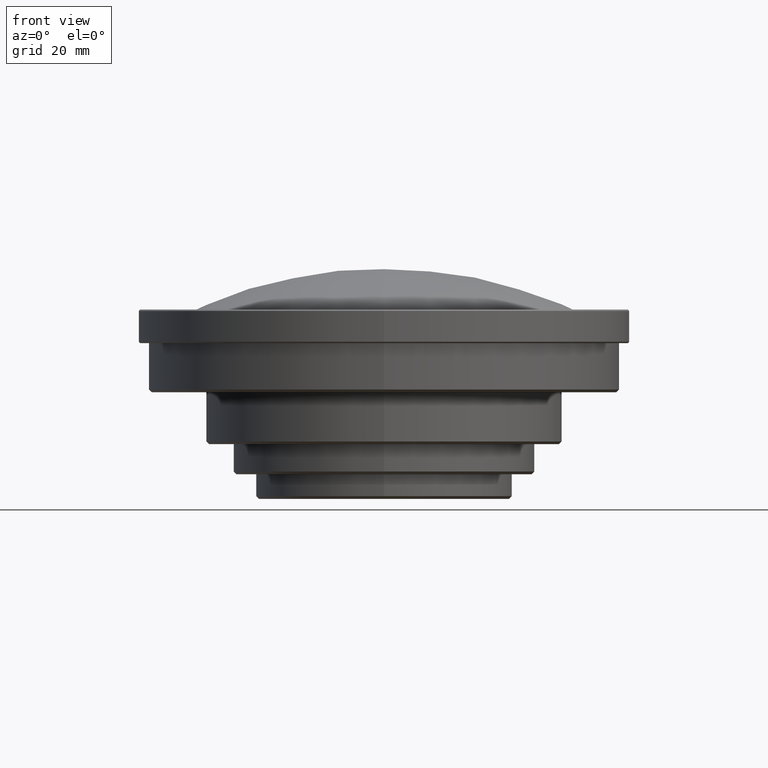
[diagram: clean part render]
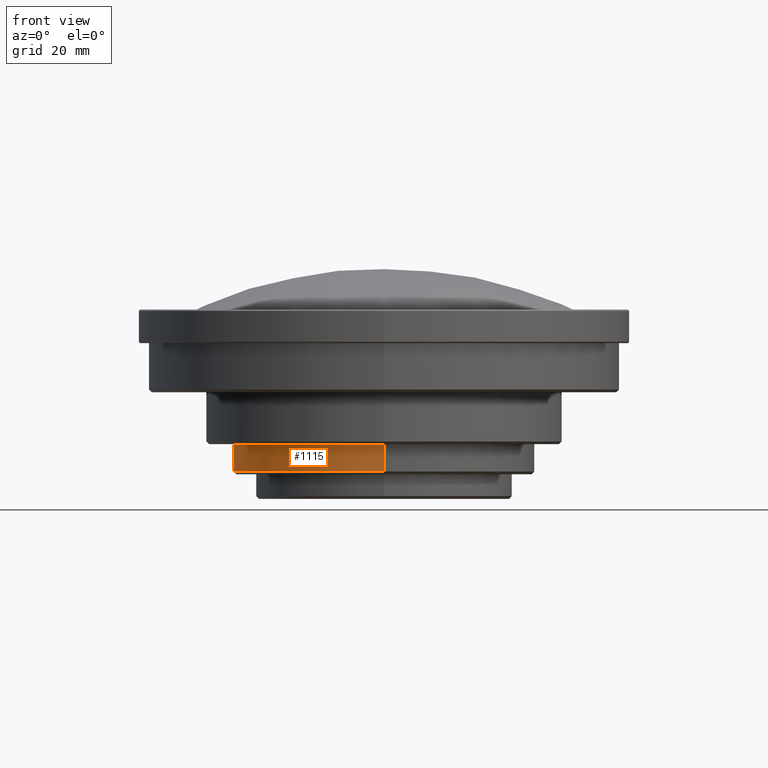
[diagram: same view with one face highlighted and labeled with its STEP entity id]
A machine part, front view. The second image highlights one B-rep face of the part: STEP entity #1115.
In plain terms, the highlighted cylindrical surface (partial cylindrical patch) has radius 55 mm, axis along (0, 0, -1).
Its self-contained STEP definition (entity closure, byte-faithful):
#19 = CARTESIAN_POINT ( 'NONE',  ( 0.000000000000000000, 55.00000000000000000, 26.17999999918000142 ) ) ;
#106 = DIRECTION ( 'NONE',  ( 0.000000000000000000, -1.000000000000000000, 0.000000000000000000 ) ) ;
#141 = EDGE_CURVE ( 'NONE', #391, #1057, #768, .T. ) ;
#152 = CIRCLE ( 'NONE', #823, 55.00000000000000000 ) ;
#230 = VERTEX_POINT ( 'NONE', #19 ) ;
#231 = AXIS2_PLACEMENT_3D ( 'NONE', #342, #354, #1045 ) ;
#233 = ORIENTED_EDGE ( 'NONE', *, *, #769, .T. ) ;
#272 = CARTESIAN_POINT ( 'NONE',  ( 0.000000000000000000, 55.00000000000000000, 16.17999999999999972 ) ) ;
#300 = EDGE_LOOP ( 'NONE', ( #233, #1114, #680, #363 ) ) ;
#342 = CARTESIAN_POINT ( 'NONE',  ( 0.000000000000000000, -1.122797425597999966E-14, 16.17999999999999972 ) ) ;
#350 = DIRECTION ( 'NONE',  ( 0.000000000000000000, 0.000000000000000000, 1.000000000000000000 ) ) ;
#354 = DIRECTION ( 'NONE',  ( 0.000000000000000000, 0.000000000000000000, 1.000000000000000000 ) ) ;
#363 = ORIENTED_EDGE ( 'NONE', *, *, #916, .F. ) ;
#374 = CARTESIAN_POINT ( 'NONE',  ( 0.000000000000000000, -1.122797425597999966E-14, 94.71599481863999870 ) ) ;
#391 = VERTEX_POINT ( 'NONE', #765 ) ;
#477 = CARTESIAN_POINT ( 'NONE',  ( 0.000000000000000000, -1.122797425597999966E-14, 26.17999999918000142 ) ) ;
#496 = CIRCLE ( 'NONE', #231, 55.00000000000000000 ) ;
#574 = AXIS2_PLACEMENT_3D ( 'NONE', #374, #967, #106 ) ;
#583 = DIRECTION ( 'NONE',  ( 0.000000000000000000, 0.000000000000000000, 1.000000000000000000 ) ) ;
#614 = FACE_OUTER_BOUND ( 'NONE', #300, .T. ) ;
#639 = CARTESIAN_POINT ( 'NONE',  ( 0.000000000000000000, -55.00000000000000000, 26.17999999918000142 ) ) ;
#680 = ORIENTED_EDGE ( 'NONE', *, *, #721, .F. ) ;
#721 = EDGE_CURVE ( 'NONE', #230, #1057, #152, .T. ) ;
#765 = CARTESIAN_POINT ( 'NONE',  ( 0.000000000000000000, -55.00000000000000000, 16.17999999999999972 ) ) ;
#768 = LINE ( 'NONE', #1112, #799 ) ;
#769 = EDGE_CURVE ( 'NONE', #771, #391, #496, .T. ) ;
#771 = VERTEX_POINT ( 'NONE', #272 ) ;
#776 = CARTESIAN_POINT ( 'NONE',  ( 0.000000000000000000, 55.00000000000000000, 16.17999999999999972 ) ) ;
#792 = CYLINDRICAL_SURFACE ( 'NONE', #574, 55.00000000000000000 ) ;
#799 = VECTOR ( 'NONE', #877, 1000.000000000000000 ) ;
#817 = DIRECTION ( 'NONE',  ( 0.000000000000000000, 1.000000000000000000, 0.000000000000000000 ) ) ;
#823 = AXIS2_PLACEMENT_3D ( 'NONE', #477, #583, #817 ) ;
#877 = DIRECTION ( 'NONE',  ( 0.000000000000000000, 0.000000000000000000, 1.000000000000000000 ) ) ;
#916 = EDGE_CURVE ( 'NONE', #771, #230, #1116, .T. ) ;
#927 = VECTOR ( 'NONE', #350, 1000.000000000000000 ) ;
#967 = DIRECTION ( 'NONE',  ( 0.000000000000000000, 0.000000000000000000, -1.000000000000000000 ) ) ;
#1045 = DIRECTION ( 'NONE',  ( 0.000000000000000000, 1.000000000000000000, 0.000000000000000000 ) ) ;
#1057 = VERTEX_POINT ( 'NONE', #639 ) ;
#1112 = CARTESIAN_POINT ( 'NONE',  ( 0.000000000000000000, -55.00000000000000000, 16.17999999999999972 ) ) ;
#1114 = ORIENTED_EDGE ( 'NONE', *, *, #141, .T. ) ;
#1115 = ADVANCED_FACE ( 'NONE', ( #614 ), #792, .T. ) ;
#1116 = LINE ( 'NONE', #776, #927 ) ;